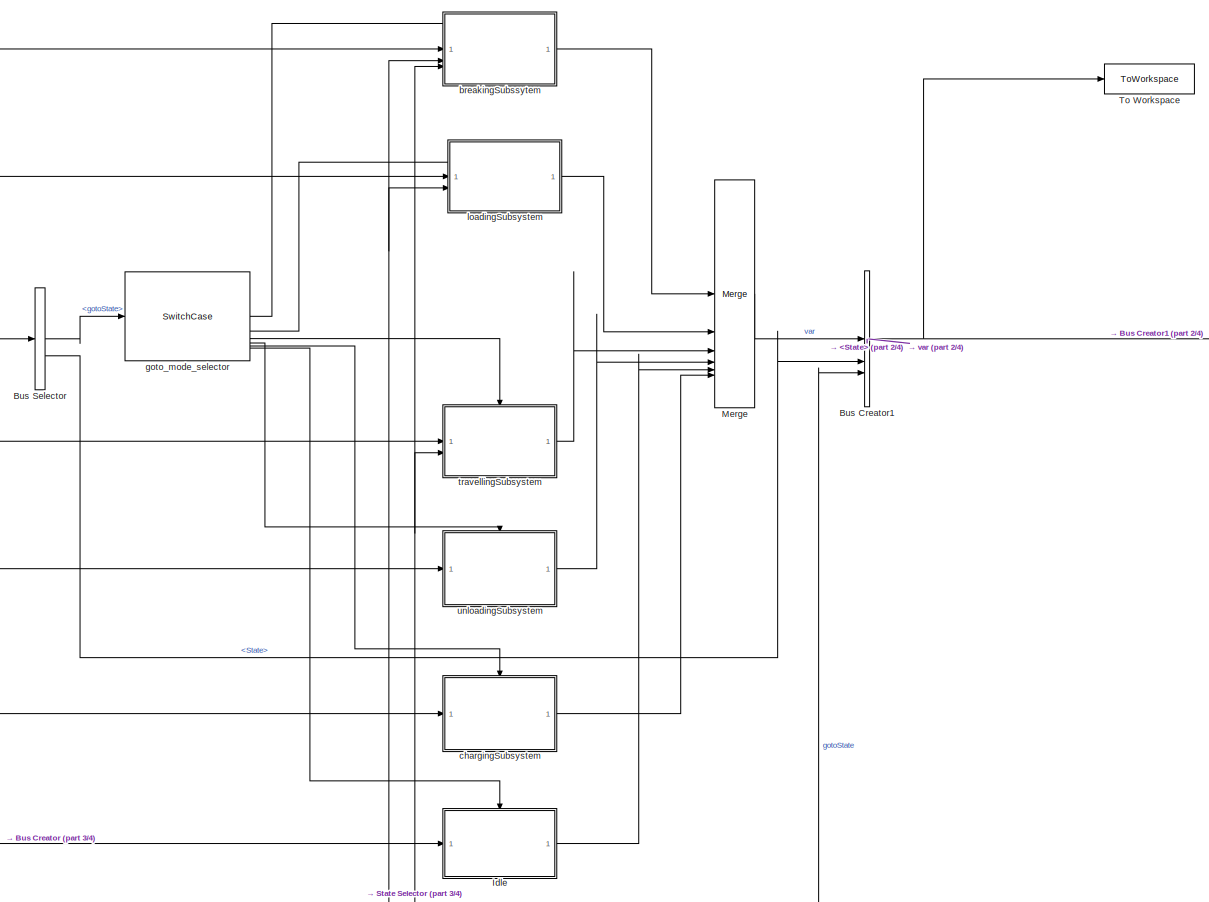
[diagram: root canvas - part 1/4, top center region]
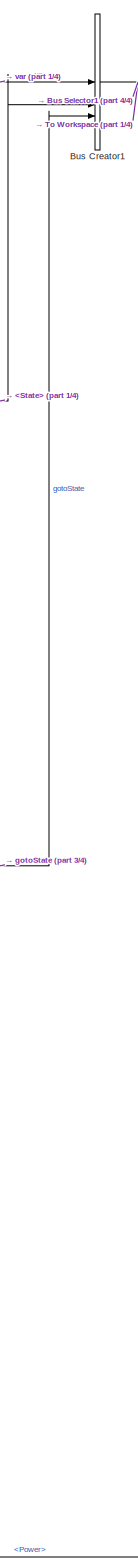
[diagram: root canvas - part 2/4, right side, full height]
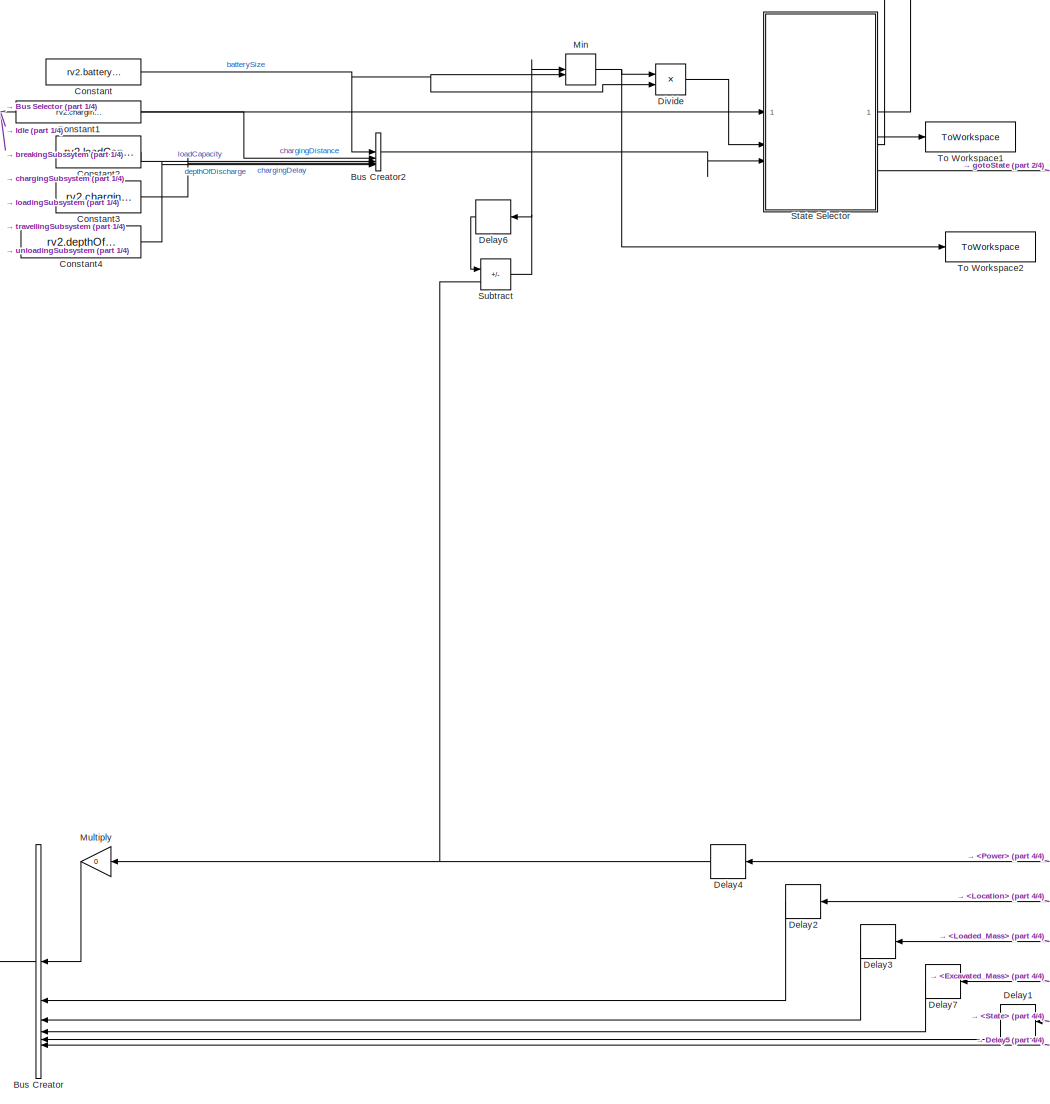
[diagram: root canvas - part 3/4, bottom left region]
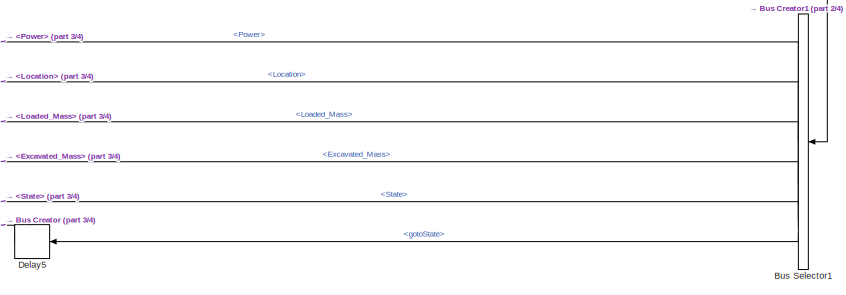
[diagram: root canvas - part 4/4, bottom right region]
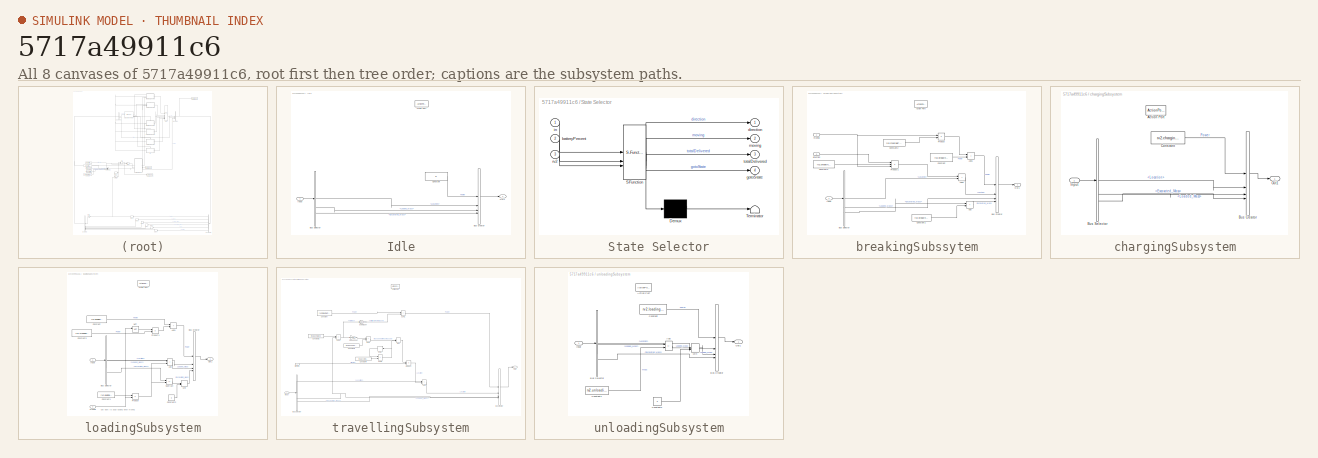
[diagram: thumbnail index - all 8 canvases of the model, root first then tree order]
MODEL slx_5717a49911c6
KIND model
CONFIG AbsTol = auto
CONFIG EnableMultiTasking = off
CONFIG FixedStep = 1
CONFIG MaxStep = auto
CONFIG MinStep = auto
CONFIG RelTol = 1e-3
CONFIG SampleTimeConstraint = Unconstrained
CONFIG SolverName = FixedStepAuto
CONFIG StartTime = 0.0
CONFIG StopTime = 86400
BLOCK [BusCreator] Bus Creator
  DisplayOption = bar
  InheritFromInputs = off
  Inputs = 6
  OutDataTypeStr = Bus: curState
BLOCK [BusCreator] Bus Creator1
  DisplayOption = bar
  InheritFromInputs = on
  Inputs = 3
BLOCK [BusCreator] Bus Creator2
  DisplayOption = bar
  InheritFromInputs = on
  Inputs = 5
  OutDataTypeStr = Bus: bus_rv
BLOCK [BusSelector] Bus Selector
  OutputSignals = gotoState,State
BLOCK [BusSelector] Bus Selector1
  OutputSignals = var.Power,var.Location,var.Loaded_Mass,var.Excavated_Mass,State,gotoState
BLOCK [Constant] Constant
  Value = rv2.batterySize
BLOCK [Constant] Constant1
  Value = rv2.chargingDistance
BLOCK [Constant] Constant2
  Value = rv2.loadCapacity
BLOCK [Constant] Constant3
  Value = rv2.chargingDelay
BLOCK [Constant] Constant4
  Value = rv2.depthOfDischarge
BLOCK [Delay] Delay1
  DelayLength = 1
  InitialCondition = int8(modes.breaking)
  InputPortMap = u0
BLOCK [Delay] Delay2
  DelayLength = 1
  InitialCondition = 0
  InputPortMap = u0
BLOCK [Delay] Delay3
  DelayLength = 1
  InitialCondition = 0
  InputPortMap = u0
BLOCK [Delay] Delay4
  DelayLength = 1
  InitialCondition = 0
  InputPortMap = u0
BLOCK [Delay] Delay5
  DelayLength = 1
  InitialCondition = int8(modes.idle)
  InputPortMap = u0
BLOCK [Delay] Delay6
  DelayLength = 1
  InitialCondition = rv2.batterySize
  InputPortMap = u0
BLOCK [Delay] Delay7
  DelayLength = 1
  InitialCondition = 0
  InputPortMap = u0
BLOCK [Product] Divide
  Inputs = */
BLOCK [SubSystem] Idle
  TreatAsAtomicUnit = on
BLOCK [ActionPort] Idle/Action Port
  ActionPortLabel = case [ 0 ]:
BLOCK [BusCreator] Idle/Bus Creator
  DisplayOption = bar
  InheritFromInputs = on
  Inputs = 4
BLOCK [BusSelector] Idle/Bus Selector
  OutputSignals = Location,Loaded_Mass,Excavated_Mass
BLOCK [Constant] Idle/Constant
  Value = 0
BLOCK [Inport] Idle/Input
  OutDataTypeStr = Bus: curState
BLOCK [Outport] Idle/Out1
  LockScale = on
BLOCK [Merge] Merge
  Inputs = 6
BLOCK [MinMax] Min
  Inputs = 2
BLOCK [Gain] Multiply
  Gain = 0
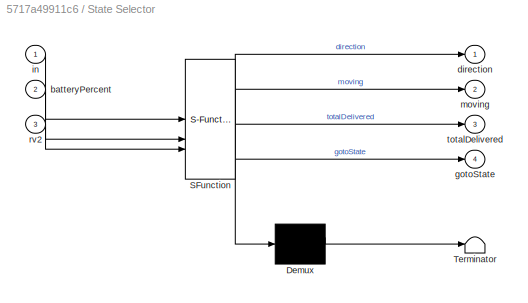
BLOCK [SubSystem] State Selector
  ErrorFcn = Stateflow.Translate.translate
  PermitHierarchicalResolution = ExplicitOnly
  SFBlockType = Chart
  TreatAsAtomicUnit = on
BLOCK [Demux] State Selector/ Demux 
  Outputs = 1
BLOCK [S-Function] State Selector/ SFunction 
  EnableBusSupport = on
  FunctionName = sf_sfun
  PortCounts = [3 5]
  SFcnIsStateOwnerBlock = off
  SFunctionDeploymentMode = off
  Tag = Stateflow S-Function 3
BLOCK [Terminator] State Selector/ Terminator 
BLOCK [Inport] State Selector/batteryPercent
  Port = 2
BLOCK [Outport] State Selector/direction
BLOCK [Outport] State Selector/gotoState
  Port = 4
BLOCK [Inport] State Selector/in
BLOCK [Outport] State Selector/moving
  Port = 2
BLOCK [Inport] State Selector/rv2
  Port = 3
BLOCK [Outport] State Selector/totalDelivered
  Port = 3
BLOCK [Sum] Subtract
  IconShape = rectangular
  Inputs = +-
BLOCK [ToWorkspace] To Workspace
  FixptAsFi = on
  MaxDataPoints = inf
  SampleTime = -1
  SaveFormat = Timeseries
  VariableName = simout
BLOCK [ToWorkspace] To Workspace1
  FixptAsFi = on
  MaxDataPoints = inf
  SampleTime = -1
  Save2DSignal = 2-D array (concatenate along first dimension)
  VariableName = total
BLOCK [ToWorkspace] To Workspace2
  FixptAsFi = on
  MaxDataPoints = inf
  SampleTime = -1
  Save2DSignal = 2-D array (concatenate along first dimension)
  VariableName = battery
BLOCK [SubSystem] breakingSubssytem
  TreatAsAtomicUnit = on
BLOCK [ActionPort] breakingSubssytem/Action Port
  ActionPortLabel = case [ 1 ]:
BLOCK [Sum] breakingSubssytem/Add
  IconShape = rectangular
BLOCK [Sum] breakingSubssytem/Add1
  IconShape = rectangular
BLOCK [Sum] breakingSubssytem/Add2
  IconShape = rectangular
BLOCK [BusCreator] breakingSubssytem/Bus Creator
  DisplayOption = bar
  InheritFromInputs = on
  Inputs = 4
BLOCK [BusSelector] breakingSubssytem/Bus Selector
  OutputSignals = Location,Loaded_Mass,Excavated_Mass
BLOCK [Constant] breakingSubssytem/Constant
  Value = rv2.breakingPower
BLOCK [Constant] breakingSubssytem/Constant1
  Value = rv2.breakingRate
BLOCK [Constant] breakingSubssytem/Constant2
  Value = rv2.movingPower
BLOCK [Constant] breakingSubssytem/Constant3
  Value = rv2.breakingSpeed
BLOCK [Inport] breakingSubssytem/Input
  OutDataTypeStr = Bus: curState
BLOCK [Outport] breakingSubssytem/Out1
  LockScale = on
BLOCK [Product] breakingSubssytem/Product
BLOCK [Product] breakingSubssytem/Product1
  Inputs = 3
BLOCK [Inport] breakingSubssytem/direction
  Port = 3
BLOCK [Inport] breakingSubssytem/moving
  Port = 2
BLOCK [SubSystem] chargingSubsystem
  TreatAsAtomicUnit = on
BLOCK [ActionPort] chargingSubsystem/Action Port
  ActionPortLabel = case [ 5 ]:
BLOCK [BusCreator] chargingSubsystem/Bus Creator
  DisplayOption = bar
  InheritFromInputs = on
  Inputs = 4
BLOCK [BusSelector] chargingSubsystem/Bus Selector
  OutputSignals = Location,Loaded_Mass,Excavated_Mass
BLOCK [Constant] chargingSubsystem/Constant
  Value = rv2.chargingPower
BLOCK [Inport] chargingSubsystem/Input
  OutDataTypeStr = Bus: curState
BLOCK [Outport] chargingSubsystem/Out1
  LockScale = on
BLOCK [SwitchCase] goto_mode_selector
  CaseConditions = {1, 2, 3, 4, 5, 0}
  ShowDefaultCase = off
BLOCK [SubSystem] loadingSubsystem
  TreatAsAtomicUnit = on
BLOCK [ActionPort] loadingSubsystem/Action Port
  ActionPortLabel = case [ 2 ]:
BLOCK [Sum] loadingSubsystem/Add
  IconShape = rectangular
BLOCK [Sum] loadingSubsystem/Add1
  IconShape = rectangular
BLOCK [BusCreator] loadingSubsystem/Bus Creator
  DisplayOption = bar
  InheritFromInputs = on
  Inputs = 4
BLOCK [BusSelector] loadingSubsystem/Bus Selector
  OutputSignals = Location,Loaded_Mass,Excavated_Mass
BLOCK [Constant] loadingSubsystem/Constant
  Value = rv2.loadingPower
BLOCK [Constant] loadingSubsystem/Constant1
  Value = rv2.loadingRate
BLOCK [Constant] loadingSubsystem/Constant2
  Value = 0
BLOCK [Constant] loadingSubsystem/Constant3
  Value = rv2.movingPower
BLOCK [Inport] loadingSubsystem/Input
  OutDataTypeStr = Bus: curState
BLOCK [MinMax] loadingSubsystem/Min
  Function = max
  Inputs = 2
BLOCK [Logic] loadingSubsystem/NOT
  AllPortsSameDT = off
  IconShape = distinctive
  Operator = NOT
  OutDataTypeStr = boolean
BLOCK [Outport] loadingSubsystem/Out1
  LockScale = on
BLOCK [Product] loadingSubsystem/Product
BLOCK [Product] loadingSubsystem/Product1
BLOCK [Sum] loadingSubsystem/Subtract
  IconShape = rectangular
  Inputs = +-
BLOCK [Inport] loadingSubsystem/moving
  Port = 2
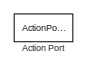
[diagram: travellingSubsystem - part 1/3, top center region]
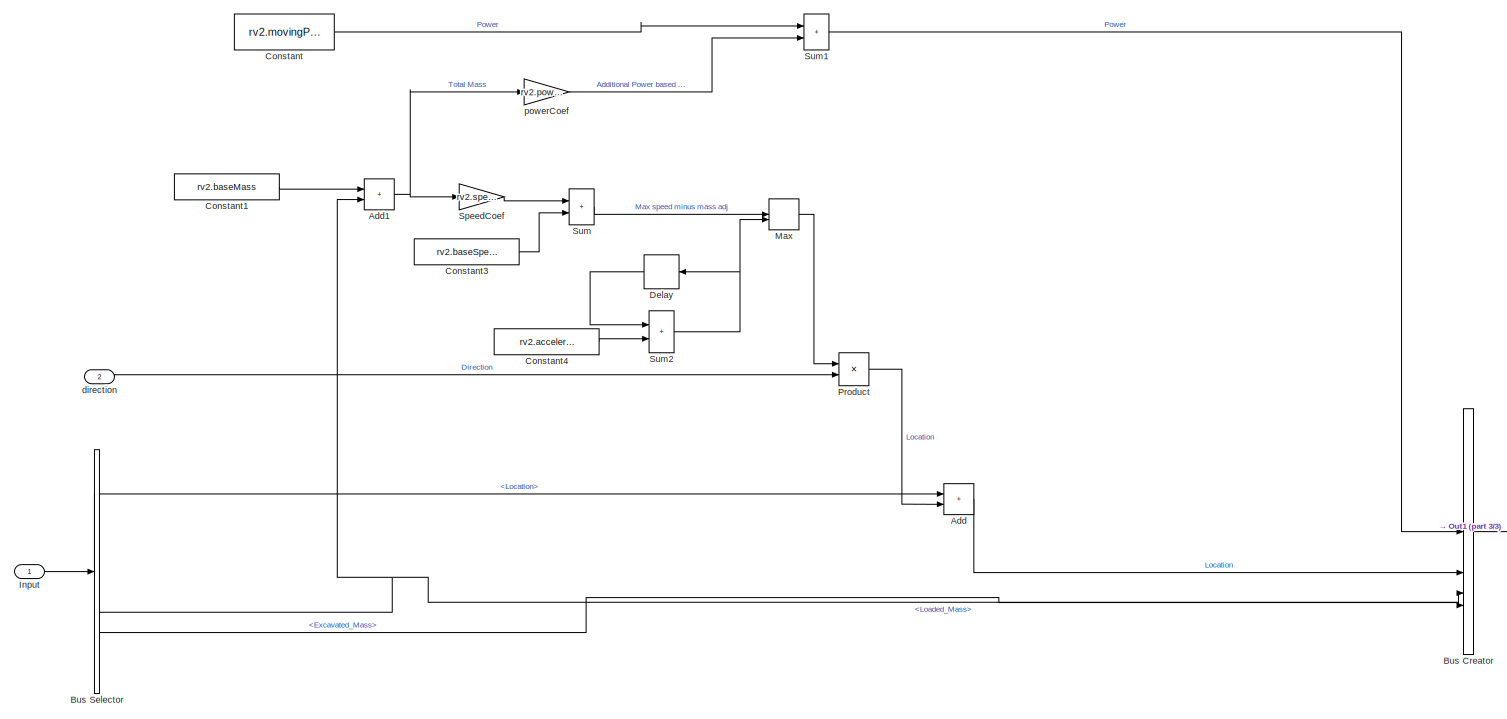
[diagram: travellingSubsystem - part 2/3, most of the canvas]
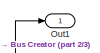
[diagram: travellingSubsystem - part 3/3, middle right region]
BLOCK [SubSystem] travellingSubsystem
  TreatAsAtomicUnit = on
BLOCK [ActionPort] travellingSubsystem/Action Port
  ActionPortLabel = case [ 3 ]:
  InitializeStates = reset
BLOCK [Sum] travellingSubsystem/Add
  IconShape = rectangular
BLOCK [Sum] travellingSubsystem/Add1
  IconShape = rectangular
BLOCK [BusCreator] travellingSubsystem/Bus Creator
  DisplayOption = bar
  InheritFromInputs = on
  Inputs = 4
BLOCK [BusSelector] travellingSubsystem/Bus Selector
  OutputSignals = Location,Loaded_Mass,Excavated_Mass
BLOCK [Constant] travellingSubsystem/Constant
  Value = rv2.movingPower
BLOCK [Constant] travellingSubsystem/Constant1
  Value = rv2.baseMass
BLOCK [Constant] travellingSubsystem/Constant3
  Value = rv2.baseSpeed
BLOCK [Constant] travellingSubsystem/Constant4
  Value = rv2.acceleration
BLOCK [Delay] travellingSubsystem/Delay
  DelayLength = 1
  InputPortMap = u0
BLOCK [Inport] travellingSubsystem/Input
  OutDataTypeStr = Bus: curState
BLOCK [MinMax] travellingSubsystem/Max
  Inputs = 2
BLOCK [Outport] travellingSubsystem/Out1
  LockScale = on
BLOCK [Product] travellingSubsystem/Product
BLOCK [Gain] travellingSubsystem/SpeedCoef
  Gain = rv2.speedCoef
BLOCK [Sum] travellingSubsystem/Sum
  IconShape = rectangular
BLOCK [Sum] travellingSubsystem/Sum1
  IconShape = rectangular
BLOCK [Sum] travellingSubsystem/Sum2
  IconShape = rectangular
BLOCK [Inport] travellingSubsystem/direction
  Port = 2
BLOCK [Gain] travellingSubsystem/powerCoef
  Gain = rv2.powerCoef
BLOCK [SubSystem] unloadingSubsystem
  TreatAsAtomicUnit = on
BLOCK [ActionPort] unloadingSubsystem/Action Port
  ActionPortLabel = case [ 4 ]:
BLOCK [Sum] unloadingSubsystem/Add
  IconShape = rectangular
  Inputs = +-
BLOCK [BusCreator] unloadingSubsystem/Bus Creator
  DisplayOption = bar
  InheritFromInputs = on
  Inputs = 4
BLOCK [BusSelector] unloadingSubsystem/Bus Selector
  OutputSignals = Location,Loaded_Mass,Excavated_Mass
BLOCK [Constant] unloadingSubsystem/Constant
  Value = rv2.loadingPower
BLOCK [Constant] unloadingSubsystem/Constant1
  Value = rv2.unloadingRate
BLOCK [Constant] unloadingSubsystem/Constant2
  Value = 0
BLOCK [Inport] unloadingSubsystem/Input
  OutDataTypeStr = Bus: curState
BLOCK [MinMax] unloadingSubsystem/Min
  Function = max
  Inputs = 2
BLOCK [Outport] unloadingSubsystem/Out1
  LockScale = on
ANNOTATION loadingSubsystem: Only want to apply loading when moving
NET Bus Creator1:1 -> Bus Selector1:1, To Workspace:1
LINE Bus Creator2:1 -> State Selector:3
NET Bus Creator:1 -> Bus Selector:1, Idle:1, State Selector:1, breakingSubssytem:1, chargingSubsystem:1, loadingSubsystem:1, travellingSubsystem:1, unloadingSubsystem:1
LINE Bus Selector1:1 -> Delay4:1
LINE Bus Selector1:2 -> Delay2:1
LINE Bus Selector1:3 -> Delay3:1
LINE Bus Selector1:4 -> Delay7:1
LINE Bus Selector1:5 -> Delay1:1
LINE Bus Selector1:6 -> Delay5:1
LINE Bus Selector:1 -> goto_mode_selector:1
LINE Bus Selector:2 -> Bus Creator1:2
LINE Constant1:1 -> Bus Creator2:2
LINE Constant2:1 -> Bus Creator2:3
LINE Constant3:1 -> Bus Creator2:4
LINE Constant4:1 -> Bus Creator2:5
NET Constant:1 -> Bus Creator2:1, Divide:2, Min:2
LINE Delay1:1 -> Bus Creator:5
LINE Delay2:1 -> Bus Creator:2
LINE Delay3:1 -> Bus Creator:3
NET Delay4:1 -> Multiply:1, Subtract:2
LINE Delay5:1 -> Bus Creator:6
LINE Delay6:1 -> Subtract:1
LINE Delay7:1 -> Bus Creator:4
LINE Divide:1 -> State Selector:2
LINE Idle/Bus Creator:1 -> Idle/Out1:1
LINE Idle/Bus Selector:1 -> Idle/Bus Creator:2
LINE Idle/Bus Selector:2 -> Idle/Bus Creator:3
LINE Idle/Bus Selector:3 -> Idle/Bus Creator:4
LINE Idle/Constant:1 -> Idle/Bus Creator:1
LINE Idle/Input:1 -> Idle/Bus Selector:1
LINE Idle:1 -> Merge:5
LINE Merge:1 -> Bus Creator1:1
NET Min:1 -> Divide:1, To Workspace2:1
LINE Multiply:1 -> Bus Creator:1
NET State Selector:1 -> breakingSubssytem:3, travellingSubsystem:2
NET State Selector:2 -> breakingSubssytem:2, loadingSubsystem:2
LINE State Selector:3 -> To Workspace1:1
LINE State Selector:4 -> Bus Creator1:3
NET Subtract:1 -> Delay6:1, Min:1
LINE breakingSubssytem/Add1:1 -> breakingSubssytem/Bus Creator:1
LINE breakingSubssytem/Add2:1 -> breakingSubssytem/Bus Creator:2
LINE breakingSubssytem/Add:1 -> breakingSubssytem/Bus Creator:4
LINE breakingSubssytem/Bus Creator:1 -> breakingSubssytem/Out1:1
LINE breakingSubssytem/Bus Selector:1 -> breakingSubssytem/Add2:2
LINE breakingSubssytem/Bus Selector:2 -> breakingSubssytem/Bus Creator:3
LINE breakingSubssytem/Bus Selector:3 -> breakingSubssytem/Add:1
LINE breakingSubssytem/Constant1:1 -> breakingSubssytem/Add:2
LINE breakingSubssytem/Constant2:1 -> breakingSubssytem/Product:2
LINE breakingSubssytem/Constant3:1 -> breakingSubssytem/Product1:2
LINE breakingSubssytem/Constant:1 -> breakingSubssytem/Add1:2
LINE breakingSubssytem/Input:1 -> breakingSubssytem/Bus Selector:1
LINE breakingSubssytem/Product1:1 -> breakingSubssytem/Add2:1
LINE breakingSubssytem/Product:1 -> breakingSubssytem/Add1:1
LINE breakingSubssytem/direction:1 -> breakingSubssytem/Product1:1
NET breakingSubssytem/moving:1 -> breakingSubssytem/Product1:3, breakingSubssytem/Product:1
LINE breakingSubssytem:1 -> Merge:1
LINE chargingSubsystem/Bus Creator:1 -> chargingSubsystem/Out1:1
LINE chargingSubsystem/Bus Selector:1 -> chargingSubsystem/Bus Creator:2
LINE chargingSubsystem/Bus Selector:2 -> chargingSubsystem/Bus Creator:3
LINE chargingSubsystem/Bus Selector:3 -> chargingSubsystem/Bus Creator:4
LINE chargingSubsystem/Constant:1 -> chargingSubsystem/Bus Creator:1
LINE chargingSubsystem/Input:1 -> chargingSubsystem/Bus Selector:1
LINE chargingSubsystem:1 -> Merge:6
LINE goto_mode_selector:1 -> breakingSubssytem:ifaction
LINE goto_mode_selector:2 -> loadingSubsystem:ifaction
LINE goto_mode_selector:3 -> travellingSubsystem:ifaction
LINE goto_mode_selector:4 -> unloadingSubsystem:ifaction
LINE goto_mode_selector:5 -> chargingSubsystem:ifaction
LINE goto_mode_selector:6 -> Idle:ifaction
LINE loadingSubsystem/Add1:1 -> loadingSubsystem/Bus Creator:1
LINE loadingSubsystem/Add:1 -> loadingSubsystem/Bus Creator:3
LINE loadingSubsystem/Bus Creator:1 -> loadingSubsystem/Out1:1
LINE loadingSubsystem/Bus Selector:1 -> loadingSubsystem/Bus Creator:2
LINE loadingSubsystem/Bus Selector:2 -> loadingSubsystem/Add:1
LINE loadingSubsystem/Bus Selector:3 -> loadingSubsystem/Subtract:1
LINE loadingSubsystem/Constant1:1 -> loadingSubsystem/Product:1
LINE loadingSubsystem/Constant2:1 -> loadingSubsystem/Min:2
LINE loadingSubsystem/Constant3:1 -> loadingSubsystem/Product1:2
LINE loadingSubsystem/Constant:1 -> loadingSubsystem/Add1:1
LINE loadingSubsystem/Input:1 -> loadingSubsystem/Bus Selector:1
LINE loadingSubsystem/Min:1 -> loadingSubsystem/Bus Creator:4
LINE loadingSubsystem/NOT:1 -> loadingSubsystem/Product1:1
LINE loadingSubsystem/Product1:1 -> loadingSubsystem/Add1:2
NET loadingSubsystem/Product:1 -> loadingSubsystem/Add:2, loadingSubsystem/Subtract:2
LINE loadingSubsystem/Subtract:1 -> loadingSubsystem/Min:1
NET loadingSubsystem/moving:1 -> loadingSubsystem/NOT:1, loadingSubsystem/Product:2
LINE loadingSubsystem:1 -> Merge:2
NET travellingSubsystem/Add1:1 -> travellingSubsystem/SpeedCoef:1, travellingSubsystem/powerCoef:1
LINE travellingSubsystem/Add:1 -> travellingSubsystem/Bus Creator:2
LINE travellingSubsystem/Bus Creator:1 -> travellingSubsystem/Out1:1
LINE travellingSubsystem/Bus Selector:1 -> travellingSubsystem/Add:1
NET travellingSubsystem/Bus Selector:2 -> travellingSubsystem/Add1:2, travellingSubsystem/Bus Creator:3
LINE travellingSubsystem/Bus Selector:3 -> travellingSubsystem/Bus Creator:4
LINE travellingSubsystem/Constant1:1 -> travellingSubsystem/Add1:1
LINE travellingSubsystem/Constant3:1 -> travellingSubsystem/Sum:2
LINE travellingSubsystem/Constant4:1 -> travellingSubsystem/Sum2:2
LINE travellingSubsystem/Constant:1 -> travellingSubsystem/Sum1:1
LINE travellingSubsystem/Delay:1 -> travellingSubsystem/Sum2:1
LINE travellingSubsystem/Input:1 -> travellingSubsystem/Bus Selector:1
LINE travellingSubsystem/Max:1 -> travellingSubsystem/Product:1
LINE travellingSubsystem/Product:1 -> travellingSubsystem/Add:2
LINE travellingSubsystem/SpeedCoef:1 -> travellingSubsystem/Sum:1
LINE travellingSubsystem/Sum1:1 -> travellingSubsystem/Bus Creator:1
NET travellingSubsystem/Sum2:1 -> travellingSubsystem/Delay:1, travellingSubsystem/Max:2
LINE travellingSubsystem/Sum:1 -> travellingSubsystem/Max:1
LINE travellingSubsystem/direction:1 -> travellingSubsystem/Product:2
LINE travellingSubsystem/powerCoef:1 -> travellingSubsystem/Sum1:2
LINE travellingSubsystem:1 -> Merge:3
LINE unloadingSubsystem/Add:1 -> unloadingSubsystem/Min:1
LINE unloadingSubsystem/Bus Creator:1 -> unloadingSubsystem/Out1:1
LINE unloadingSubsystem/Bus Selector:1 -> unloadingSubsystem/Bus Creator:2
LINE unloadingSubsystem/Bus Selector:2 -> unloadingSubsystem/Add:1
LINE unloadingSubsystem/Bus Selector:3 -> unloadingSubsystem/Bus Creator:4
LINE unloadingSubsystem/Constant1:1 -> unloadingSubsystem/Add:2
LINE unloadingSubsystem/Constant2:1 -> unloadingSubsystem/Min:2
LINE unloadingSubsystem/Constant:1 -> unloadingSubsystem/Bus Creator:1
LINE unloadingSubsystem/Input:1 -> unloadingSubsystem/Bus Selector:1
LINE unloadingSubsystem/Min:1 -> unloadingSubsystem/Bus Creator:3
LINE unloadingSubsystem:1 -> Merge:4
note: NET lines group one-source signal fan-out (src -> all destinations, sorted); 1:1 wires keep LINE
CHART State Selector states=15 transitions=27
  STATE_LABEL 'Done\n\ngotoState=int8(modes.idle);'
  STATE_LABEL 'Init\ngotoState=int8(modes.idle);\ndirection=1;\ntotalDelivered=0;\nload=0;\nmoving=0;\nstate=0;\ncycle_count=0;'
  STATE_LABEL 'Idle\ngotoState=int8(modes.idle);\n'
  STATE_LABEL 'Charging\ndu:\ngotoState=int8(modes.charging);\n'
  STATE_LABEL 'Excavate\n\ngotoState=int8(modes.breaking);\n'
  STATE_LABEL 'startJackhammer\n\ndu:\nmoving=0;\ndirection=1;'
  STATE_LABEL 'moveForward\n\ndu:\nmoving=1;\ndirection=direction*-1;'
  STATE_LABEL 'stopMoving\n\ndu:\nmoving=0;'
  STATE_LABEL 'after(5,tick)'
  STATE_LABEL 'after(20, sec)'
  STATE_LABEL 'startJackhammer\n\ndu:\nmoving=0;\ndirection=1;'
  STATE_LABEL 'moveForward\n\ndu:\nmoving=1;\ndirection=direction*-1;'
  STATE_LABEL 'stopMoving\n\ndu:\nmoving=0;'
  STATE_LABEL 'MoveToPit\nentry:\ncycle_count=cycle_count+1;\ndu:\ngotoState=int8(modes.travelling);\ndirection=-1;\n'
  STATE_LABEL 'Load\n\ngotoState=int8(modes.loading);\n'
  STATE_LABEL 'lowerScoop\ndu:\nmoving=0;'
  STATE_LABEL 'adjustScoop\ndu:\nmoving=0;'
  STATE_LABEL 'move\ndu:\nmoving=1;\ndirection=direction*-1;'
  STATE_LABEL 'after(10, sec)'
  STATE_LABEL 'after(20, sec)'
  STATE_LABEL 'lowerScoop\ndu:\nmoving=0;'
  STATE_LABEL 'adjustScoop\ndu:\nmoving=0;'
  STATE_LABEL 'move\ndu:\nmoving=1;\ndirection=direction*-1;'
  STATE_LABEL 'Unload\n\ngotoState=int8(modes.unloading);\n'
  STATE_LABEL 'MoveToSite\n\ngotoState=int8(modes.travelling);\ndirection=1;\nload=in.Loaded_Mass;'
CHART  states=0 transitions=0
